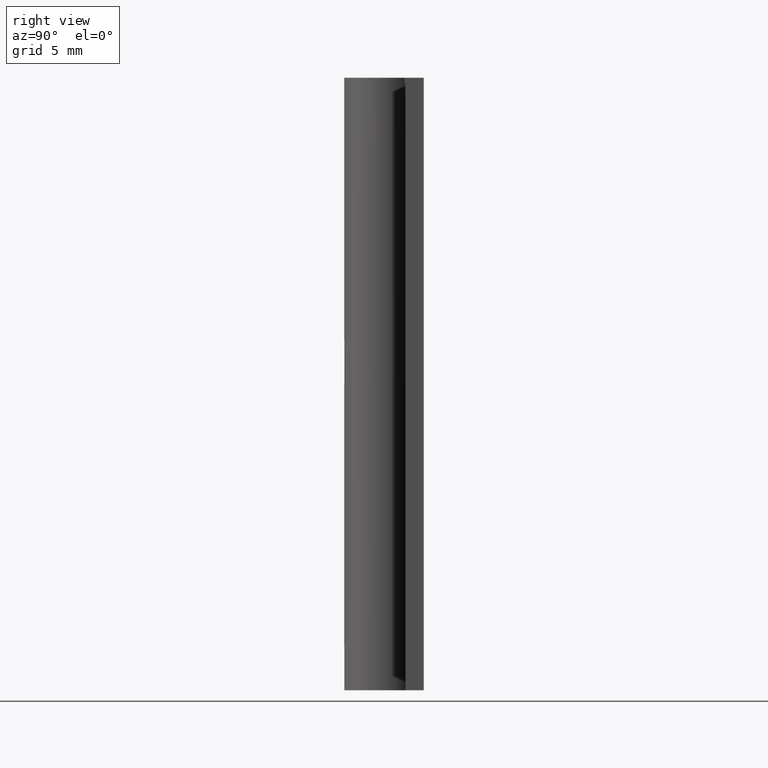
[diagram: clean part render]
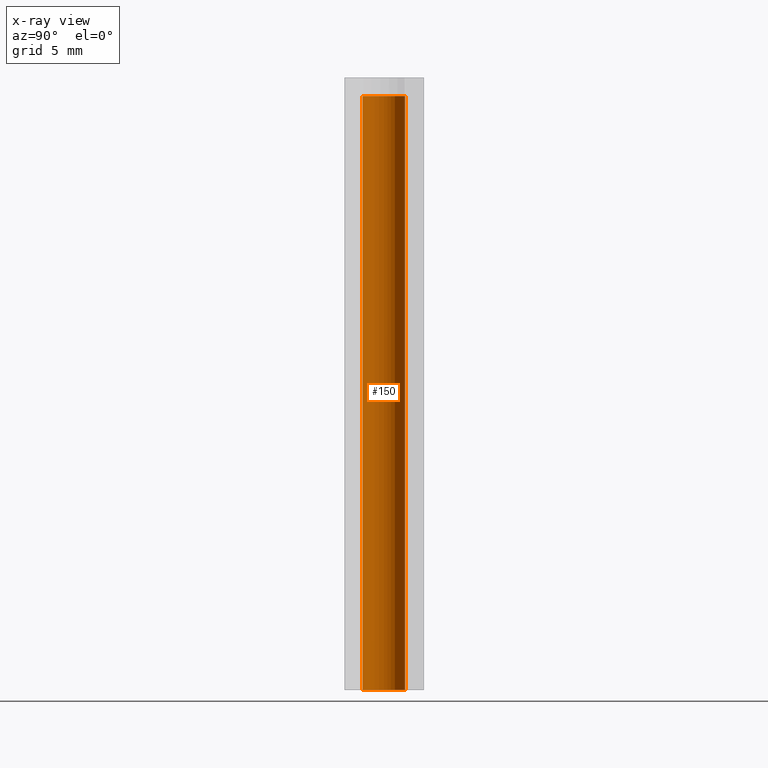
[diagram: x-ray — body ghosted, one internal face saturated and labeled with its STEP entity id]
A machine part, right view, then the same camera in x-ray: the body is ghosted and one INTERNAL B-rep face — a face not visible from any outside direction — is saturated and labeled: STEP entity #150.
In plain terms, the highlighted face is a freeform B-spline surface patch.
Its self-contained STEP definition (entity closure, byte-faithful):
#44=CARTESIAN_POINT('',(-0.232349042281938,1.734701241919575,49.712500000000013));
#45=CARTESIAN_POINT('',(-0.219418117809717,1.736238278305390,49.712500000000013));
#46=CARTESIAN_POINT('',(-0.156825775116461,1.743678327035060,49.712500000000006));
#47=CARTESIAN_POINT('',(-0.106834944186000,1.746735897238267,49.712500000000013));
#48=CARTESIAN_POINT('',(1.639900953052267,1.853570841424267,49.712500000000006));
#49=CARTESIAN_POINT('',(1.746735897238267,0.106834944186000,49.712500000000013));
#50=CARTESIAN_POINT('',(1.853570841424267,-1.639900953052267,49.712500000000006));
#51=CARTESIAN_POINT('',(0.094272535090375,-1.747504247093957,49.712499999999991));
#52=CARTESIAN_POINT('',(0.081784750435680,-1.748268032723312,49.712499999999977));
#53=CARTESIAN_POINT('',(-0.232349042281938,1.734701241919575,-1.242812500000007));
#54=CARTESIAN_POINT('',(-0.219418117809717,1.736238278305390,-1.242812500000007));
#55=CARTESIAN_POINT('',(-0.156825775116461,1.743678327035060,-1.242812500000007));
#56=CARTESIAN_POINT('',(-0.106834944186000,1.746735897238267,-1.242812500000007));
#57=CARTESIAN_POINT('',(1.639900953052267,1.853570841424267,-1.242812500000007));
#58=CARTESIAN_POINT('',(1.746735897238267,0.106834944186000,-1.242812500000007));
#59=CARTESIAN_POINT('',(1.853570841424267,-1.639900953052267,-1.242812500000007));
#60=CARTESIAN_POINT('',(0.094272535090375,-1.747504247093957,-1.242812500000006));
#61=CARTESIAN_POINT('',(0.081784750435680,-1.748268032723312,-1.242812500000006));
#69=(BOUNDED_SURFACE()B_SPLINE_SURFACE(2,1,((#44,#53),(#45,#54),(#46,#55),(#47,#56),(#48,#57),(#49,#58),(#50,#59),(#51,#60),(#52,#61)),.UNSPECIFIED.,.F.,.F.,.U.)B_SPLINE_SURFACE_WITH_KNOTS((3,1,2,2,1,3),(2,2),(3.062738667934246,3.078760800517997,3.141592653589793,4.712388980384690,6.283185307179586,6.299209503390278),(0.0,50.955312500000034),.UNSPECIFIED.)GEOMETRIC_REPRESENTATION_ITEM()RATIONAL_B_SPLINE_SURFACE(((0.972008777416235,0.972008777416235),(0.974757289105681,0.974757289105681),(0.988284271247462,0.988284271247462),(1.0,1.0),(0.707106781186548,0.707106781186548),(1.0,1.0),(0.707106781186548,0.707106781186548),(1.002987897493130,1.002987897493130),(1.005975794986260,1.005975794986260)))REPRESENTATION_ITEM('')SURFACE());
#70=CARTESIAN_POINT('',(-0.206559910792633,1.737766671119382,2.271543E-016));
#71=VERTEX_POINT('',#70);
#72=CARTESIAN_POINT('',(1.750000000000000,0.0,0.0));
#73=VERTEX_POINT('',#72);
#74=CARTESIAN_POINT('',(-0.206559910792632,1.737766671119382,2.271543E-016));
#75=CARTESIAN_POINT('',(-0.103642209535663,1.750000000000000,0.0));
#76=CARTESIAN_POINT('',(0.0,1.750000000000000,0.0));
#77=CARTESIAN_POINT('',(1.750000000000000,1.750000000000000,0.0));
#78=CARTESIAN_POINT('',(1.750000000000000,0.0,0.0));
#86=(BOUNDED_CURVE()B_SPLINE_CURVE(2,(#74,#75,#76,#77,#78),.UNSPECIFIED.,.F.,.U.)B_SPLINE_CURVE_WITH_KNOTS((3,2,3),(0.229562473487771,0.250000000000000,0.500000000000000),.UNSPECIFIED.)CURVE()GEOMETRIC_REPRESENTATION_ITEM()RATIONAL_B_SPLINE_CURVE((0.956026754133252,0.976055948300991,1.0,0.707106781186547,1.0))REPRESENTATION_ITEM(''));
#87=EDGE_CURVE('',#71,#73,#86,.T.);
#88=ORIENTED_EDGE('',*,*,#87,.F.);
#89=CARTESIAN_POINT('',(-0.206559910792633,1.737766671119382,48.500000000000000));
#90=VERTEX_POINT('',#89);
#91=CARTESIAN_POINT('',(-0.206559910792633,1.737766671119382,48.500000000000000));
#92=CARTESIAN_POINT('',(-0.206559910792633,1.737766671119382,2.271543E-016));
#93=QUASI_UNIFORM_CURVE('',1,(#91,#92),.UNSPECIFIED.,.F.,.U.);
#94=EDGE_CURVE('',#90,#71,#93,.T.);
#95=ORIENTED_EDGE('',*,*,#94,.F.);
#96=CARTESIAN_POINT('',(1.750000000000000,0.0,48.500000000000000));
#97=VERTEX_POINT('',#96);
#98=CARTESIAN_POINT('',(-0.206559910792632,1.737766671119382,48.500000000000000));
#99=CARTESIAN_POINT('',(-0.103642209535663,1.750000000000000,48.500000000000007));
#100=CARTESIAN_POINT('',(0.0,1.750000000000000,48.500000000000000));
#101=CARTESIAN_POINT('',(1.750000000000000,1.750000000000000,48.500000000000014));
#102=CARTESIAN_POINT('',(1.750000000000000,0.0,48.500000000000000));
#110=(BOUNDED_CURVE()B_SPLINE_CURVE(2,(#98,#99,#100,#101,#102),.UNSPECIFIED.,.F.,.U.)B_SPLINE_CURVE_WITH_KNOTS((3,2,3),(0.229562473487771,0.250000000000000,0.500000000000000),.UNSPECIFIED.)CURVE()GEOMETRIC_REPRESENTATION_ITEM()RATIONAL_B_SPLINE_CURVE((0.956026754133252,0.976055948300991,1.0,0.707106781186547,1.0))REPRESENTATION_ITEM(''));
#111=EDGE_CURVE('',#90,#97,#110,.T.);
#112=ORIENTED_EDGE('',*,*,#111,.T.);
#113=CARTESIAN_POINT('',(0.106831698754701,-1.746736095731297,48.500000000000000));
#114=VERTEX_POINT('',#113);
#115=CARTESIAN_POINT('',(1.750000000000000,0.0,48.500000000000000));
#116=CARTESIAN_POINT('',(1.749999999999999,-1.646238681505061,48.500000000000000));
#117=CARTESIAN_POINT('',(0.106831698754701,-1.746736095731297,48.500000000000000));
#125=(BOUNDED_CURVE()B_SPLINE_CURVE(2,(#115,#116,#117),.UNSPECIFIED.,.F.,.U.)B_SPLINE_CURVE_WITH_KNOTS((3,3),(0.500000000000000,0.739333282833585),.UNSPECIFIED.)CURVE()GEOMETRIC_REPRESENTATION_ITEM()RATIONAL_B_SPLINE_CURVE((1.0,0.719603617686723,0.976072728763027))REPRESENTATION_ITEM(''));
#126=EDGE_CURVE('',#97,#114,#125,.T.);
#127=ORIENTED_EDGE('',*,*,#126,.T.);
#128=CARTESIAN_POINT('',(0.106834944193026,-1.746735897237837,3.330669E-016));
#129=VERTEX_POINT('',#128);
#130=CARTESIAN_POINT('',(0.106831698754701,-1.746736095731297,48.500000000000000));
#131=CARTESIAN_POINT('',(0.106834944193026,-1.746735897237837,3.330669E-016));
#132=QUASI_UNIFORM_CURVE('',1,(#130,#131),.UNSPECIFIED.,.F.,.U.);
#133=EDGE_CURVE('',#114,#129,#132,.T.);
#134=ORIENTED_EDGE('',*,*,#133,.T.);
#135=CARTESIAN_POINT('',(1.750000000000000,0.0,0.0));
#136=CARTESIAN_POINT('',(1.749999999999999,-1.646235617071689,0.0));
#137=CARTESIAN_POINT('',(0.106834944193026,-1.746735897237837,3.330669E-016));
#145=(BOUNDED_CURVE()B_SPLINE_CURVE(2,(#135,#136,#137),.UNSPECIFIED.,.F.,.U.)B_SPLINE_CURVE_WITH_KNOTS((3,3),(0.500000000000000,0.739332962240579),.UNSPECIFIED.)CURVE()GEOMETRIC_REPRESENTATION_ITEM()RATIONAL_B_SPLINE_CURVE((1.0,0.719603993284793,0.976072041670225))REPRESENTATION_ITEM(''));
#146=EDGE_CURVE('',#73,#129,#145,.T.);
#147=ORIENTED_EDGE('',*,*,#146,.F.);
#148=EDGE_LOOP('',(#88,#95,#112,#127,#134,#147));
#149=FACE_OUTER_BOUND('',#148,.T.);
#150=ADVANCED_FACE('',(#149),#69,.T.);